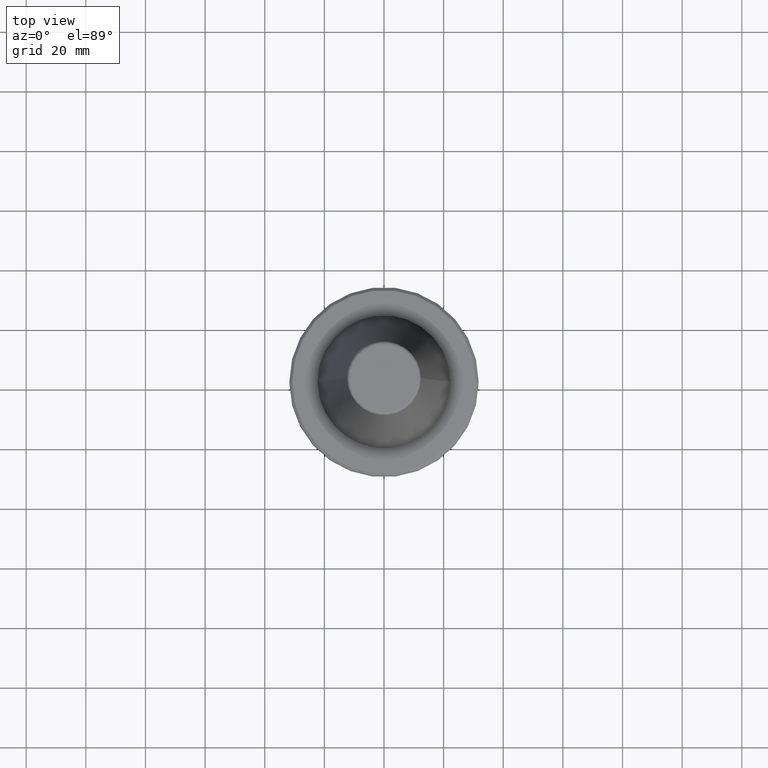
[diagram: clean part render]
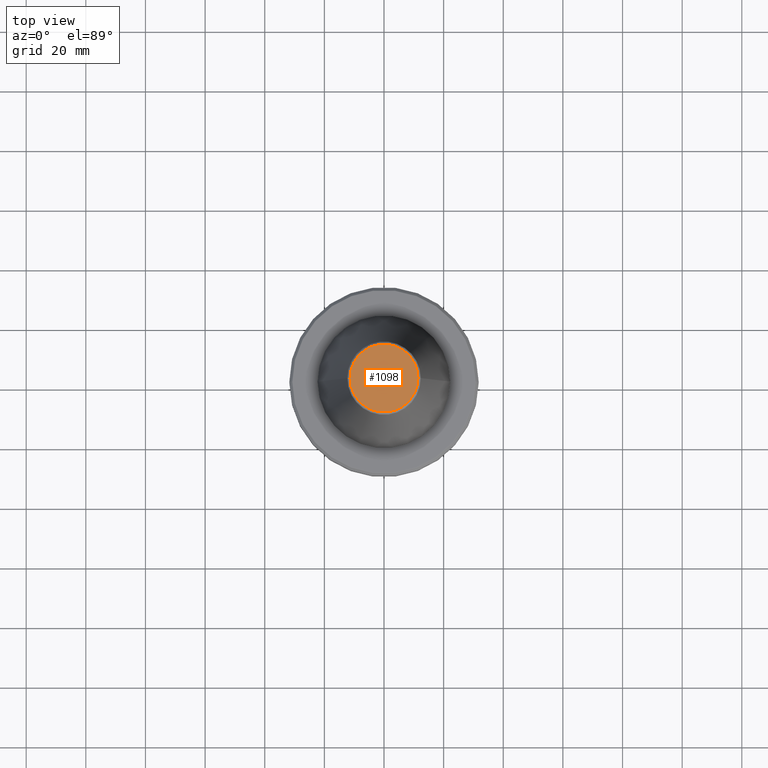
[diagram: same view with one face highlighted and labeled with its STEP entity id]
A machine part, top view. The second image highlights one B-rep face of the part: STEP entity #1098.
In plain terms, the highlighted planar face has unit normal (0, -0, 1).
Its self-contained STEP definition (entity closure, byte-faithful):
#2 = CARTESIAN_POINT ( 'NONE',  ( 0.0000000000000000000, -8.337524199435086500E-014, 68.39999999999999100 ) ) ;
#73 = DIRECTION ( 'NONE',  ( -0.0000000000000000000, -0.0000000000000000000, 1.000000000000000000 ) ) ;
#177 = AXIS2_PLACEMENT_3D ( 'NONE', #393, #1055, #502 ) ;
#193 = FACE_OUTER_BOUND ( 'NONE', #1028, .T. ) ;
#215 = PLANE ( 'NONE',  #680 ) ;
#274 = CARTESIAN_POINT ( 'NONE',  ( 11.38516258961893100, 0.0000000000000000000, 68.40000000000000600 ) ) ;
#393 = CARTESIAN_POINT ( 'NONE',  ( 0.0000000000000000000, 0.0000000000000000000, 68.40000000000000600 ) ) ;
#502 = DIRECTION ( 'NONE',  ( 1.000000000000000000, 0.0000000000000000000, 0.0000000000000000000 ) ) ;
#529 = DIRECTION ( 'NONE',  ( 1.000000000000000000, 0.0000000000000000000, 0.0000000000000000000 ) ) ;
#599 = CARTESIAN_POINT ( 'NONE',  ( -11.38516258961893100, 1.454871700296352000E-015, 68.40000000000000600 ) ) ;
#668 = CARTESIAN_POINT ( 'NONE',  ( 0.0000000000000000000, 0.0000000000000000000, 68.40000000000000600 ) ) ;
#680 = AXIS2_PLACEMENT_3D ( 'NONE', #2, #1080, #529 ) ;
#760 = DIRECTION ( 'NONE',  ( 1.000000000000000000, 0.0000000000000000000, 0.0000000000000000000 ) ) ;
#837 = CIRCLE ( 'NONE', #177, 11.38516258961893100 ) ;
#880 = VERTEX_POINT ( 'NONE', #599 ) ;
#988 = VERTEX_POINT ( 'NONE', #274 ) ;
#1028 = EDGE_LOOP ( 'NONE', ( #1240, #1072 ) ) ;
#1055 = DIRECTION ( 'NONE',  ( -0.0000000000000000000, -0.0000000000000000000, 1.000000000000000000 ) ) ;
#1072 = ORIENTED_EDGE ( 'NONE', *, *, #1141, .T. ) ;
#1080 = DIRECTION ( 'NONE',  ( 0.0000000000000000000, -0.0000000000000000000, 1.000000000000000000 ) ) ;
#1098 = ADVANCED_FACE ( 'NONE', ( #193 ), #215, .T. ) ;
#1127 = CIRCLE ( 'NONE', #1236, 11.38516258961893100 ) ;
#1141 = EDGE_CURVE ( 'NONE', #880, #988, #1127, .T. ) ;
#1180 = EDGE_CURVE ( 'NONE', #988, #880, #837, .T. ) ;
#1236 = AXIS2_PLACEMENT_3D ( 'NONE', #668, #73, #760 ) ;
#1240 = ORIENTED_EDGE ( 'NONE', *, *, #1180, .T. ) ;